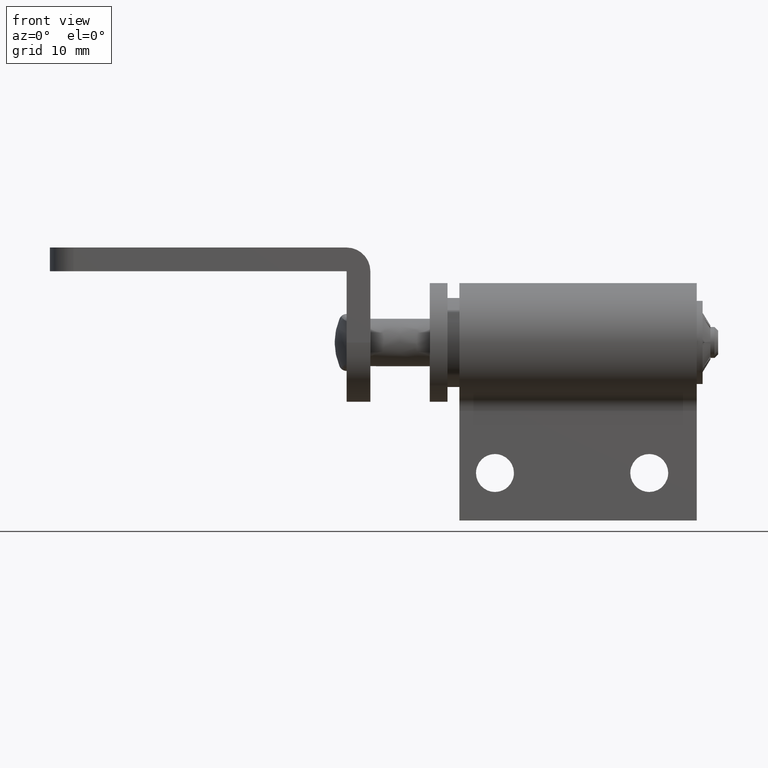
[diagram: clean part render]
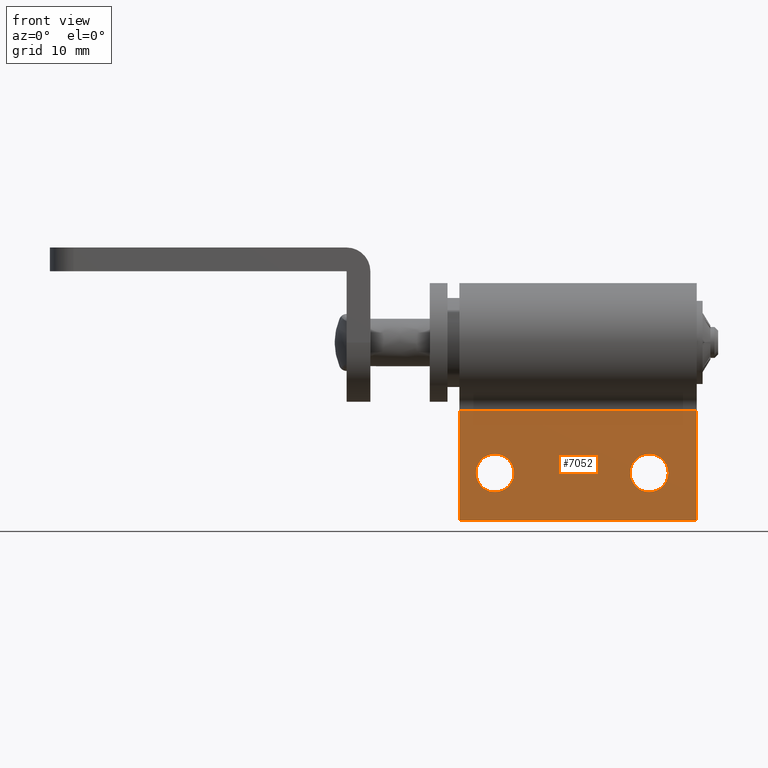
[diagram: same view with one face highlighted and labeled with its STEP entity id]
A machine part, front view. The second image highlights one B-rep face of the part: STEP entity #7052.
In plain terms, the highlighted face is a freeform B-spline surface patch.
Its self-contained STEP definition (entity closure, byte-faithful):
#6494=CARTESIAN_POINT('',(9.398632766235201,-1.499999999998181,-9.839401198068400));
#6495=VERTEX_POINT('',#6494);
#6496=CARTESIAN_POINT('',(8.900000000000199,-1.500000000000170,-11.000000797773540));
#6497=VERTEX_POINT('',#6496);
#6498=CARTESIAN_POINT('',(9.398632766235201,-1.499999999998181,-9.839401198068400));
#6499=CARTESIAN_POINT('',(9.271016098308525,-1.499999999998388,-9.960383422067583));
#6500=CARTESIAN_POINT('',(9.076961873752062,-1.499999999998834,-10.217605939259260));
#6501=CARTESIAN_POINT('',(8.927798206536059,-1.499999999999528,-10.628027789393521));
#6502=CARTESIAN_POINT('',(8.899986620397337,-1.499999999999975,-10.885027980317330));
#6503=CARTESIAN_POINT('',(8.900000000000199,-1.500000000000170,-11.000000797773540));
#6504=B_SPLINE_CURVE_WITH_KNOTS('',3,(#6498,#6499,#6500,#6501,#6502,#6503),.UNSPECIFIED.,.F.,.U.,(4,1,1,4),(0.000000019087582,0.527534022708505,0.953611004590290,1.298534311741829),.UNSPECIFIED.);
#6505=EDGE_CURVE('',#6495,#6497,#6504,.T.);
#6507=CARTESIAN_POINT('',(10.500000000000000,-1.500000000000170,-12.600000000000000));
#6508=VERTEX_POINT('',#6507);
#6509=CARTESIAN_POINT('',(8.900000000000199,-1.500000000000170,-11.000000797773540));
#6510=CARTESIAN_POINT('',(8.899902232121519,-1.500000000000167,-11.170182426744770));
#6511=CARTESIAN_POINT('',(8.952716266197163,-1.500000000000174,-11.497371290477510));
#6512=CARTESIAN_POINT('',(9.149002811185895,-1.500000000000168,-11.887429824633410));
#6513=CARTESIAN_POINT('',(9.389630906911272,-1.500000000000174,-12.166262258545750));
#6514=CARTESIAN_POINT('',(9.617749585212387,-1.500000000000161,-12.344288275826649));
#6515=CARTESIAN_POINT('',(9.883988038623414,-1.500000000000184,-12.486612216883429));
#6516=CARTESIAN_POINT('',(10.172751604280659,-1.500000000000160,-12.578083764138301));
#6517=CARTESIAN_POINT('',(10.395281903646730,-1.500000000000172,-12.600012019863160));
#6518=CARTESIAN_POINT('',(10.500000000000000,-1.500000000000170,-12.600000000000000));
#6519=B_SPLINE_CURVE_WITH_KNOTS('',3,(#6509,#6510,#6511,#6512,#6513,#6514,#6515,#6516,#6517,#6518),.UNSPECIFIED.,.F.,.U.,(4,1,1,1,1,1,1,4),(0.000000031769790,0.510520892429509,0.981776141078970,1.295937275059831,1.610103488460359,1.845731600756710,2.199173103822434,2.513336741285647),.UNSPECIFIED.);
#6520=EDGE_CURVE('',#6497,#6508,#6519,.T.);
#6522=CARTESIAN_POINT('',(11.601367233764799,-1.499999999998182,-12.160598801931600));
#6523=VERTEX_POINT('',#6522);
#6524=CARTESIAN_POINT('',(10.500000000000000,-1.500000000000170,-12.600000000000000));
#6525=CARTESIAN_POINT('',(10.689831374354601,-1.499999999999826,-12.600160627121650));
#6526=CARTESIAN_POINT('',(10.980747343607430,-1.499999999999303,-12.547574246754980));
#6527=CARTESIAN_POINT('',(11.346850355816620,-1.499999999998640,-12.370322122718539));
#6528=CARTESIAN_POINT('',(11.518770758983010,-1.499999999998330,-12.239005531936099));
#6529=CARTESIAN_POINT('',(11.601367233764799,-1.499999999998182,-12.160598801931600));
#6530=B_SPLINE_CURVE_WITH_KNOTS('',3,(#6524,#6525,#6526,#6527,#6528,#6529),.UNSPECIFIED.,.F.,.U.,(4,1,1,4),(8.055983E-009,0.569427204734328,0.873121413104328,1.214777637124613),.UNSPECIFIED.);
#6531=EDGE_CURVE('',#6508,#6523,#6530,.T.);
#6602=CARTESIAN_POINT('',(10.500000000000000,-1.500000000000170,-9.399999999999999));
#6603=VERTEX_POINT('',#6602);
#6604=CARTESIAN_POINT('',(10.500000000000000,-1.500000000000170,-9.399999999999999));
#6605=CARTESIAN_POINT('',(10.310168224013880,-1.499999999999831,-9.399839288921701));
#6606=CARTESIAN_POINT('',(10.019252552448750,-1.499999999999296,-9.452425911047794));
#6607=CARTESIAN_POINT('',(9.653150093273915,-1.499999999998650,-9.629677698508466));
#6608=CARTESIAN_POINT('',(9.481228768579566,-1.499999999998323,-9.760994402707071));
#6609=CARTESIAN_POINT('',(9.398632766235201,-1.499999999998181,-9.839401198068400));
#6610=B_SPLINE_CURVE_WITH_KNOTS('',3,(#6604,#6605,#6606,#6607,#6608,#6609),.UNSPECIFIED.,.F.,.U.,(4,1,1,4),(8.055418E-009,0.569427204734074,0.873121413104196,1.214777637124619),.UNSPECIFIED.);
#6611=EDGE_CURVE('',#6603,#6495,#6610,.T.);
#6649=CARTESIAN_POINT('',(12.099999999999801,-1.500000000000170,-10.999999202226480));
#6650=VERTEX_POINT('',#6649);
#6651=CARTESIAN_POINT('',(11.601367233764799,-1.499999999998182,-12.160598801931600));
#6652=CARTESIAN_POINT('',(11.684774170266820,-1.499999999998320,-12.081466257850391));
#6653=CARTESIAN_POINT('',(11.852056139418149,-1.499999999998645,-11.884386731755930));
#6654=CARTESIAN_POINT('',(12.047071810085670,-1.499999999999344,-11.493666544104830));
#6655=CARTESIAN_POINT('',(12.100097952849559,-1.499999999999855,-11.175849977124940));
#6656=CARTESIAN_POINT('',(12.099999999999801,-1.500000000000170,-10.999999202226480));
#6657=B_SPLINE_CURVE_WITH_KNOTS('',3,(#6651,#6652,#6653,#6654,#6655,#6656),.UNSPECIFIED.,.F.,.U.,(4,1,1,4),(0.000000019086451,0.344923326238030,0.771000308094271,1.298534311741827),.UNSPECIFIED.);
#6658=EDGE_CURVE('',#6523,#6650,#6657,.T.);
#6660=CARTESIAN_POINT('',(12.099999999999801,-1.500000000000170,-10.999999202226480));
#6661=CARTESIAN_POINT('',(12.100032923410270,-1.500000000000172,-10.869096498489720));
#6662=CARTESIAN_POINT('',(12.072526415152430,-1.500000000000168,-10.646589545228920));
#6663=CARTESIAN_POINT('',(11.948621289845450,-1.500000000000169,-10.286266198729461));
#6664=CARTESIAN_POINT('',(11.757491788534940,-1.500000000000173,-9.984450052620922));
#6665=CARTESIAN_POINT('',(11.452628847256650,-1.500000000000167,-9.694198863606337));
#6666=CARTESIAN_POINT('',(11.049697048998731,-1.500000000000175,-9.465886924153702));
#6667=CARTESIAN_POINT('',(10.696364591100220,-1.500000000000169,-9.399839422692200));
#6668=CARTESIAN_POINT('',(10.500000000000000,-1.500000000000170,-9.399999999999999));
#6669=B_SPLINE_CURVE_WITH_KNOTS('',3,(#6660,#6661,#6662,#6663,#6664,#6665,#6666,#6667,#6668),.UNSPECIFIED.,.F.,.U.,(4,1,1,1,1,1,4),(0.000000031769876,0.392706627641286,0.667605172198716,1.138859845500599,1.453018276518941,1.924273526902980,2.513336741285667),.UNSPECIFIED.);
#6670=EDGE_CURVE('',#6650,#6603,#6669,.T.);
#6693=CARTESIAN_POINT('',(22.398632766235199,-1.499999999998181,-9.839401198068401));
#6694=VERTEX_POINT('',#6693);
#6695=CARTESIAN_POINT('',(21.900000000000201,-1.500000000000170,-11.000000797773540));
#6696=VERTEX_POINT('',#6695);
#6697=CARTESIAN_POINT('',(22.398632766235199,-1.499999999998181,-9.839401198068401));
#6698=CARTESIAN_POINT('',(22.246358120537721,-1.499999999998427,-9.983580644409873));
#6699=CARTESIAN_POINT('',(22.059730505455740,-1.499999999998883,-10.248426454595149));
#6700=CARTESIAN_POINT('',(21.924169474885090,-1.499999999999590,-10.661858127442450));
#6701=CARTESIAN_POINT('',(21.899979446586610,-1.499999999999973,-10.885025416938500));
#6702=CARTESIAN_POINT('',(21.900000000000201,-1.500000000000170,-11.000000797773540));
#6703=B_SPLINE_CURVE_WITH_KNOTS('',3,(#6697,#6698,#6699,#6700,#6701,#6702),.UNSPECIFIED.,.F.,.U.,(4,1,1,4),(0.000000019085671,0.628988300703630,0.953611004590019,1.298534311741834),.UNSPECIFIED.);
#6704=EDGE_CURVE('',#6694,#6696,#6703,.T.);
#6706=CARTESIAN_POINT('',(23.500000000000000,-1.500000000000170,-12.600000000000000));
#6707=VERTEX_POINT('',#6706);
#6708=CARTESIAN_POINT('',(21.900000000000201,-1.500000000000170,-11.000000797773540));
#6709=CARTESIAN_POINT('',(21.899948051797729,-1.500000000000171,-11.143997226995420));
#6710=CARTESIAN_POINT('',(21.930254929930928,-1.500000000000171,-11.366494689190381));
#6711=CARTESIAN_POINT('',(22.040807963506762,-1.500000000000171,-11.675454980587340));
#6712=CARTESIAN_POINT('',(22.183426338087909,-1.500000000000169,-11.927235173859570));
#6713=CARTESIAN_POINT('',(22.389622970811999,-1.500000000000173,-12.166267850917190));
#6714=CARTESIAN_POINT('',(22.638484512316381,-1.500000000000169,-12.360467416911661));
#6715=CARTESIAN_POINT('',(23.002683758530939,-1.500000000000169,-12.543878641565300));
#6716=CARTESIAN_POINT('',(23.303624185240711,-1.500000000000175,-12.600151364204001));
#6717=CARTESIAN_POINT('',(23.500000000000000,-1.500000000000170,-12.600000000000000));
#6718=B_SPLINE_CURVE_WITH_KNOTS('',3,(#6708,#6709,#6710,#6711,#6712,#6713,#6714,#6715,#6716,#6717),.UNSPECIFIED.,.F.,.U.,(4,1,1,1,1,1,1,4),(0.000000031766795,0.431978108773586,0.667605172196816,0.981776141077521,1.295937275058842,1.610103488459708,1.924273526902681,2.513336741285672),.UNSPECIFIED.);
#6719=EDGE_CURVE('',#6696,#6707,#6718,.T.);
#6721=CARTESIAN_POINT('',(24.601367233764812,-1.499999999998181,-12.160598801931600));
#6722=VERTEX_POINT('',#6721);
#6723=CARTESIAN_POINT('',(23.500000000000000,-1.500000000000170,-12.600000000000000));
#6724=CARTESIAN_POINT('',(23.689827996993809,-1.499999999999826,-12.600143554562830));
#6725=CARTESIAN_POINT('',(23.980750642481890,-1.499999999999303,-12.547588831487611));
#6726=CARTESIAN_POINT('',(24.346849474686440,-1.499999999998642,-12.370320335426790));
#6727=CARTESIAN_POINT('',(24.518771448448621,-1.499999999998330,-12.239004269064690));
#6728=CARTESIAN_POINT('',(24.601367233764812,-1.499999999998181,-12.160598801931600));
#6729=B_SPLINE_CURVE_WITH_KNOTS('',3,(#6723,#6724,#6725,#6726,#6727,#6728),.UNSPECIFIED.,.F.,.U.,(4,1,1,4),(8.055389E-009,0.569427204734286,0.873121413104340,1.214777637124608),.UNSPECIFIED.);
#6730=EDGE_CURVE('',#6707,#6722,#6729,.T.);
#6802=CARTESIAN_POINT('',(23.500000000000000,-1.500000000000170,-9.399999999999999));
#6803=VERTEX_POINT('',#6802);
#6804=CARTESIAN_POINT('',(23.500000000000000,-1.500000000000170,-9.399999999999999));
#6805=CARTESIAN_POINT('',(23.310172914860679,-1.499999999999826,-9.399844129735193));
#6806=CARTESIAN_POINT('',(22.993942340097739,-1.499999999999262,-9.456983027232235));
#6807=CARTESIAN_POINT('',(22.631234154104739,-1.499999999998594,-9.643331986066373));
#6808=CARTESIAN_POINT('',(22.462881901310642,-1.499999999998304,-9.778429058943484));
#6809=CARTESIAN_POINT('',(22.398632766235199,-1.499999999998181,-9.839401198068401));
#6810=B_SPLINE_CURVE_WITH_KNOTS('',3,(#6804,#6805,#6806,#6807,#6808,#6809),.UNSPECIFIED.,.F.,.U.,(4,1,1,4),(8.055446E-009,0.569427204734202,0.949045046613487,1.214777637124617),.UNSPECIFIED.);
#6811=EDGE_CURVE('',#6803,#6694,#6810,.T.);
#6850=CARTESIAN_POINT('',(25.099999999999799,-1.500000000000170,-10.999999202226480));
#6851=VERTEX_POINT('',#6850);
#6852=CARTESIAN_POINT('',(24.601367233764812,-1.499999999998181,-12.160598801931600));
#6853=CARTESIAN_POINT('',(24.729000372889772,-1.499999999998386,-12.039627677715810));
#6854=CARTESIAN_POINT('',(24.923016273409651,-1.499999999998831,-11.782382351810750));
#6855=CARTESIAN_POINT('',(25.072209786261080,-1.499999999999533,-11.371975654064890));
#6856=CARTESIAN_POINT('',(25.100012180813959,-1.499999999999973,-11.114971698182000));
#6857=CARTESIAN_POINT('',(25.099999999999799,-1.500000000000170,-10.999999202226480));
#6858=B_SPLINE_CURVE_WITH_KNOTS('',3,(#6852,#6853,#6854,#6855,#6856,#6857),.UNSPECIFIED.,.F.,.U.,(4,1,1,4),(0.000000019088169,0.527534022709055,0.953611004590448,1.298534311741825),.UNSPECIFIED.);
#6859=EDGE_CURVE('',#6722,#6851,#6858,.T.);
#6861=CARTESIAN_POINT('',(25.099999999999799,-1.500000000000170,-10.999999202226480));
#6862=CARTESIAN_POINT('',(25.100032526237179,-1.500000000000171,-10.869096079696250));
#6863=CARTESIAN_POINT('',(25.072531578720898,-1.500000000000172,-10.646586876021351));
#6864=CARTESIAN_POINT('',(24.965679028913438,-1.500000000000168,-10.335987994401330));
#6865=CARTESIAN_POINT('',(24.816572453517999,-1.500000000000171,-10.072765787331850));
#6866=CARTESIAN_POINT('',(24.610377474079229,-1.500000000000173,-9.833731763674825));
#6867=CARTESIAN_POINT('',(24.361515350078921,-1.500000000000167,-9.639532717900135));
#6868=CARTESIAN_POINT('',(23.997316292825030,-1.500000000000177,-9.456121280587727));
#6869=CARTESIAN_POINT('',(23.696375930495520,-1.500000000000162,-9.399848874670694));
#6870=CARTESIAN_POINT('',(23.500000000000000,-1.500000000000170,-9.399999999999999));
#6871=B_SPLINE_CURVE_WITH_KNOTS('',3,(#6861,#6862,#6863,#6864,#6865,#6866,#6867,#6868,#6869,#6870),.UNSPECIFIED.,.F.,.U.,(4,1,1,1,1,1,1,4),(0.000000031767413,0.392706627639302,0.667605172197120,0.981776141077692,1.295937275058889,1.610103488459670,1.924273526902726,2.513336741285675),.UNSPECIFIED.);
#6872=EDGE_CURVE('',#6851,#6803,#6871,.T.);
#6951=CARTESIAN_POINT('',(27.500000000000000,-1.500000000000125,-5.766281297335451));
#6952=VERTEX_POINT('',#6951);
#6964=CARTESIAN_POINT('',(27.500000000000000,-1.500000000000000,-15.0));
#6965=VERTEX_POINT('',#6964);
#6966=CARTESIAN_POINT('',(27.500000000000000,-1.500000000000125,-5.766281297335451));
#6967=CARTESIAN_POINT('',(27.500000000000000,-1.500000000000000,-15.0));
#6968=QUASI_UNIFORM_CURVE('',1,(#6966,#6967),.UNSPECIFIED.,.F.,.U.);
#6969=EDGE_CURVE('',#6952,#6965,#6968,.T.);
#6992=CARTESIAN_POINT('',(7.500000000000000,-1.500000000000000,-15.0));
#6993=VERTEX_POINT('',#6992);
#7007=CARTESIAN_POINT('',(27.500000000000000,-1.500000000000000,-15.0));
#7008=CARTESIAN_POINT('',(7.500000000000000,-1.500000000000000,-15.0));
#7009=QUASI_UNIFORM_CURVE('',1,(#7007,#7008),.UNSPECIFIED.,.F.,.U.);
#7010=EDGE_CURVE('',#6965,#6993,#7009,.T.);
#7015=CARTESIAN_POINT('',(6.501000038763882,-1.500000000000130,-15.461224231301360));
#7016=CARTESIAN_POINT('',(6.501000038763882,-1.500000000000130,-5.305056818366460));
#7017=CARTESIAN_POINT('',(28.499000497677919,-1.500000000000130,-15.461224231301360));
#7018=CARTESIAN_POINT('',(28.499000497677919,-1.500000000000130,-5.305056818366460));
#7019=B_SPLINE_SURFACE_WITH_KNOTS('',1,1,((#7015,#7017),(#7016,#7018)),.UNSPECIFIED.,.F.,.F.,.U.,(2,2),(2,2),(0.0,10.156167412934900),(0.0,21.998000458914039),.UNSPECIFIED.);
#7020=CARTESIAN_POINT('',(7.500000000000000,-1.500000000000125,-5.766281297335451));
#7021=VERTEX_POINT('',#7020);
#7022=CARTESIAN_POINT('',(7.500000000000000,-1.500000000000125,-5.766281297335451));
#7023=CARTESIAN_POINT('',(7.500000000000000,-1.500000000000000,-15.0));
#7024=QUASI_UNIFORM_CURVE('',1,(#7022,#7023),.UNSPECIFIED.,.F.,.U.);
#7025=EDGE_CURVE('',#7021,#6993,#7024,.T.);
#7026=ORIENTED_EDGE('',*,*,#7025,.T.);
#7027=ORIENTED_EDGE('',*,*,#7010,.F.);
#7028=ORIENTED_EDGE('',*,*,#6969,.F.);
#7029=CARTESIAN_POINT('',(27.500000000000000,-1.500000000000125,-5.766281297335451));
#7030=CARTESIAN_POINT('',(7.500000000000000,-1.500000000000125,-5.766281297335451));
#7031=QUASI_UNIFORM_CURVE('',1,(#7029,#7030),.UNSPECIFIED.,.F.,.U.);
#7032=EDGE_CURVE('',#6952,#7021,#7031,.T.);
#7033=ORIENTED_EDGE('',*,*,#7032,.T.);
#7034=EDGE_LOOP('',(#7026,#7027,#7028,#7033));
#7035=FACE_OUTER_BOUND('',#7034,.T.);
#7036=ORIENTED_EDGE('',*,*,#6719,.F.);
#7037=ORIENTED_EDGE('',*,*,#6704,.F.);
#7038=ORIENTED_EDGE('',*,*,#6811,.F.);
#7039=ORIENTED_EDGE('',*,*,#6872,.F.);
#7040=ORIENTED_EDGE('',*,*,#6859,.F.);
#7041=ORIENTED_EDGE('',*,*,#6730,.F.);
#7042=EDGE_LOOP('',(#7036,#7037,#7038,#7039,#7040,#7041));
#7043=FACE_BOUND('',#7042,.T.);
#7044=ORIENTED_EDGE('',*,*,#6520,.F.);
#7045=ORIENTED_EDGE('',*,*,#6505,.F.);
#7046=ORIENTED_EDGE('',*,*,#6611,.F.);
#7047=ORIENTED_EDGE('',*,*,#6670,.F.);
#7048=ORIENTED_EDGE('',*,*,#6658,.F.);
#7049=ORIENTED_EDGE('',*,*,#6531,.F.);
#7050=EDGE_LOOP('',(#7044,#7045,#7046,#7047,#7048,#7049));
#7051=FACE_BOUND('',#7050,.T.);
#7052=ADVANCED_FACE('',(#7035,#7043,#7051),#7019,.F.);